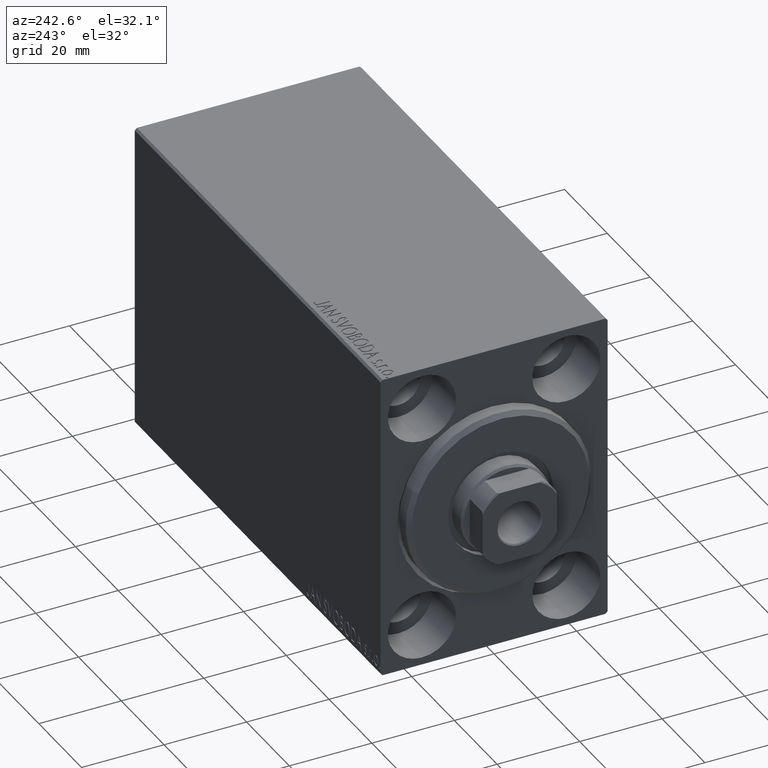
[diagram: clean part render]
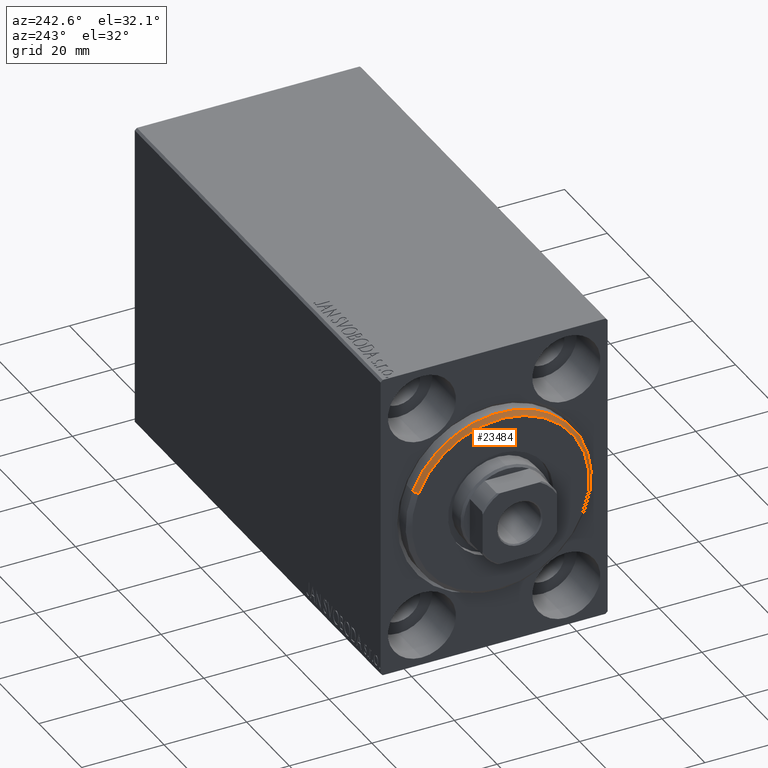
[diagram: same view with one face highlighted and labeled with its STEP entity id]
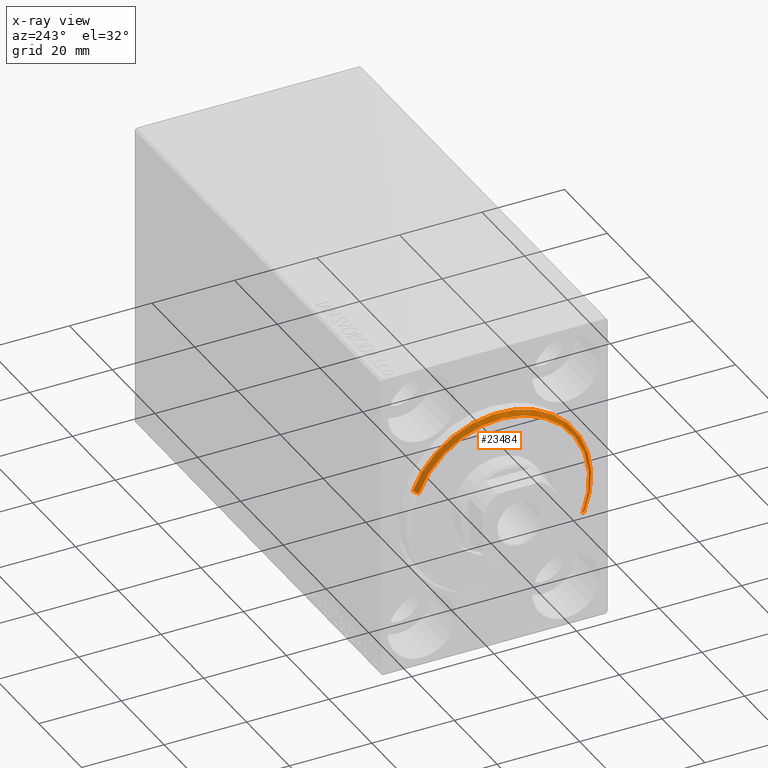
[diagram: x-ray of the same camera — body ghosted, the highlighted face saturated]
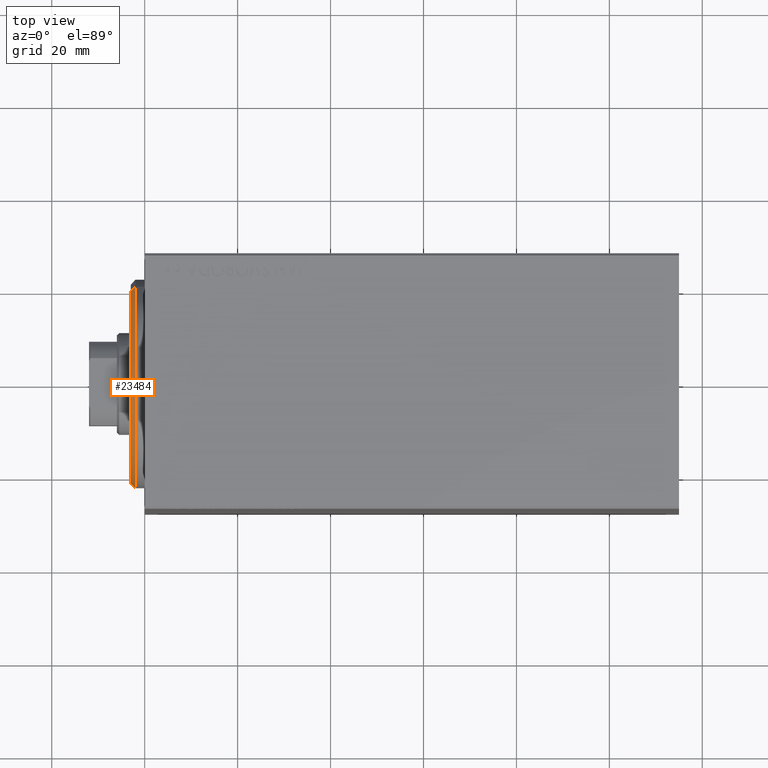
[diagram: same view with one face highlighted and labeled with its STEP entity id]
A machine part, auxiliary view. The second image highlights one B-rep face of the part: STEP entity #23484.
The next image is the same camera in x-ray: the body ghosted, the highlighted face saturated — about 0% of this face is hidden behind the body in this view.
A second angle (top view) of the same face is appended — the face is thin or edge-on in the first view.
In plain terms, the highlighted conical surface has half-angle 45 deg.
Its self-contained STEP definition (entity closure, byte-faithful):
#1738 = DIRECTION ( 'NONE',  ( 0.000000000000000000, 0.000000000000000000, -1.000000000000000000 ) ) ;
#3287 = DIRECTION ( 'NONE',  ( -1.000000000000000000, 0.000000000000000000, 0.000000000000000000 ) ) ;
#5128 = CONICAL_SURFACE ( 'NONE', #10752, 21.50000000000000355, 0.7853981633974466137 ) ;
#6113 = DIRECTION ( 'NONE',  ( -1.000000000000000000, 0.000000000000000000, 0.000000000000000000 ) ) ;
#7957 = CIRCLE ( 'NONE', #16370, 21.50000000000000355 ) ;
#10191 = VERTEX_POINT ( 'NONE', #42642 ) ;
#10752 = AXIS2_PLACEMENT_3D ( 'NONE', #24424, #3287, #41160 ) ;
#11882 = CARTESIAN_POINT ( 'NONE',  ( 3.000000000000000000, 0.000000000000000000, 0.000000000000000000 ) ) ;
#12026 = LINE ( 'NONE', #25453, #31776 ) ;
#12763 = VECTOR ( 'NONE', #36752, 1000.000000000000000 ) ;
#12891 = DIRECTION ( 'NONE',  ( -0.7071067811865487940, 8.659560562354919300E-17, -0.7071067811865463515 ) ) ;
#15122 = AXIS2_PLACEMENT_3D ( 'NONE', #39358, #6113, #16452 ) ;
#15987 = VERTEX_POINT ( 'NONE', #38843 ) ;
#16141 = VERTEX_POINT ( 'NONE', #20100 ) ;
#16370 = AXIS2_PLACEMENT_3D ( 'NONE', #11882, #19134, #1738 ) ;
#16452 = DIRECTION ( 'NONE',  ( 0.000000000000000000, 0.000000000000000000, -1.000000000000000000 ) ) ;
#17591 = FACE_OUTER_BOUND ( 'NONE', #35491, .T. ) ;
#19134 = DIRECTION ( 'NONE',  ( 1.000000000000000000, -0.000000000000000000, 0.000000000000000000 ) ) ;
#20005 = EDGE_CURVE ( 'NONE', #16141, #15987, #42946, .T. ) ;
#20100 = CARTESIAN_POINT ( 'NONE',  ( 3.000000000000000000, 0.000000000000000000, 21.50000000000000355 ) ) ;
#21198 = EDGE_CURVE ( 'NONE', #41723, #10191, #12026, .T. ) ;
#22981 = EDGE_CURVE ( 'NONE', #16141, #41723, #7957, .T. ) ;
#23484 = ADVANCED_FACE ( 'NONE', ( #17591 ), #5128, .T. ) ;
#24424 = CARTESIAN_POINT ( 'NONE',  ( 3.000000000000000000, 0.000000000000000000, 0.000000000000000000 ) ) ;
#25453 = CARTESIAN_POINT ( 'NONE',  ( 3.000000000000000000, 2.632990618166810024E-15, -21.50000000000000355 ) ) ;
#31776 = VECTOR ( 'NONE', #12891, 1000.000000000000000 ) ;
#32687 = ORIENTED_EDGE ( 'NONE', *, *, #20005, .T. ) ;
#33057 = ORIENTED_EDGE ( 'NONE', *, *, #22981, .F. ) ;
#34090 = CIRCLE ( 'NONE', #15122, 22.50000000000000355 ) ;
#34312 = EDGE_CURVE ( 'NONE', #10191, #15987, #34090, .T. ) ;
#34549 = ORIENTED_EDGE ( 'NONE', *, *, #21198, .F. ) ;
#35491 = EDGE_LOOP ( 'NONE', ( #34549, #33057, #32687, #40314 ) ) ;
#36752 = DIRECTION ( 'NONE',  ( -0.7071067811865487940, 0.000000000000000000, 0.7071067811865463515 ) ) ;
#37239 = CARTESIAN_POINT ( 'NONE',  ( 3.000000000000000000, 2.694222958124177598E-15, -21.50000000000000355 ) ) ;
#38843 = CARTESIAN_POINT ( 'NONE',  ( 1.999999999999999112, 0.000000000000000000, 22.50000000000000355 ) ) ;
#39358 = CARTESIAN_POINT ( 'NONE',  ( 1.999999999999999112, 0.000000000000000000, 0.000000000000000000 ) ) ;
#39421 = CARTESIAN_POINT ( 'NONE',  ( 3.000000000000000000, 0.000000000000000000, 21.50000000000000355 ) ) ;
#40314 = ORIENTED_EDGE ( 'NONE', *, *, #34312, .F. ) ;
#41160 = DIRECTION ( 'NONE',  ( 0.000000000000000000, 0.000000000000000000, 1.000000000000000000 ) ) ;
#41723 = VERTEX_POINT ( 'NONE', #37239 ) ;
#42642 = CARTESIAN_POINT ( 'NONE',  ( 1.999999999999999112, 2.755455298081545172E-15, -22.50000000000000355 ) ) ;
#42946 = LINE ( 'NONE', #39421, #12763 ) ;